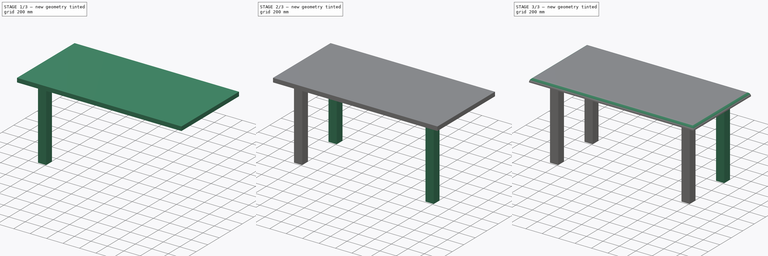
[diagram: build sequence overview — one tinted view per stage of 3, left to right]
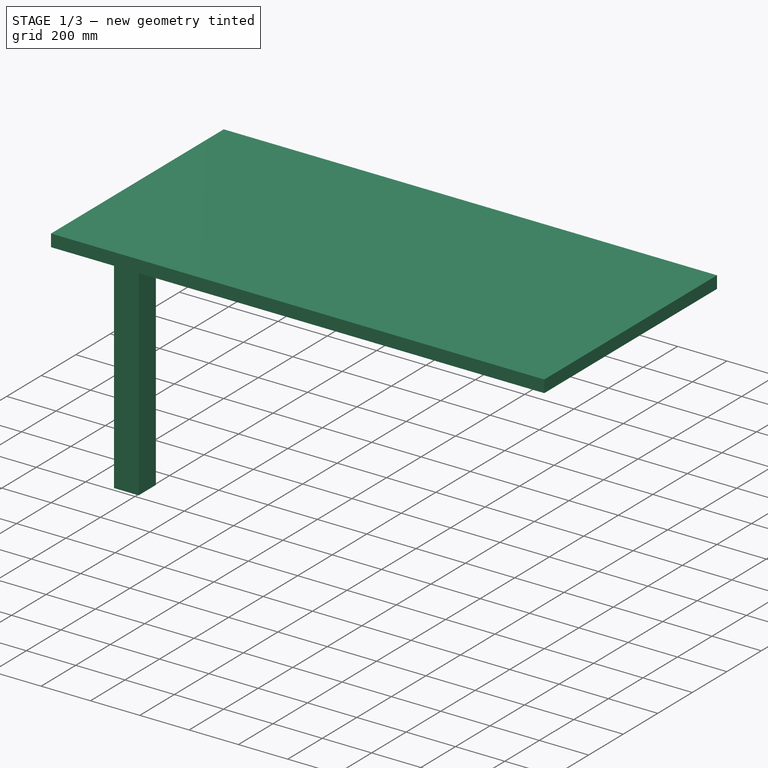
[diagram: stage 1 of 3 — iso view after this stage's code; geometry added in this stage tinted green]
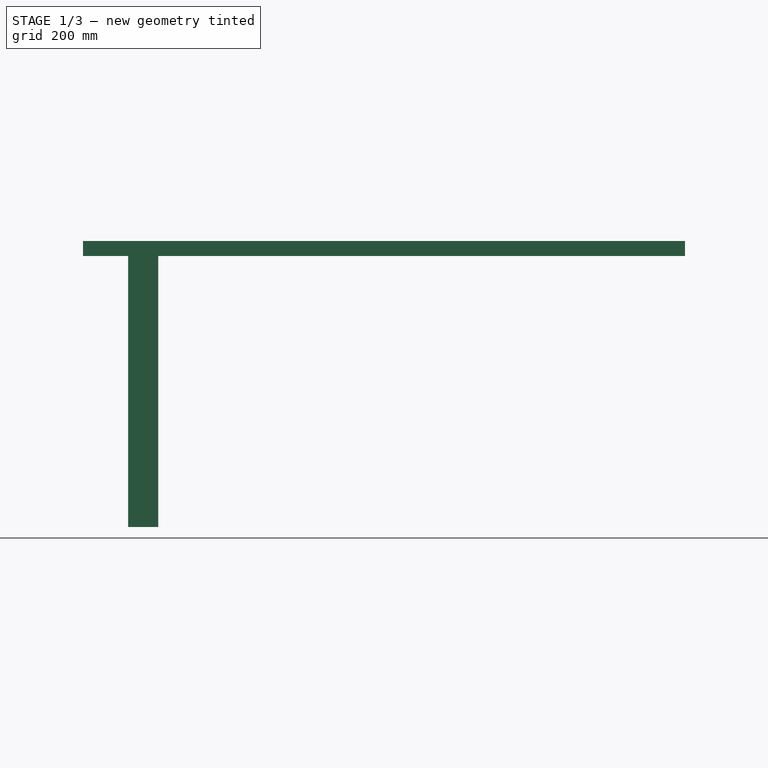
[diagram: stage 1 of 3 — front view after this stage's code; geometry added in this stage tinted green]
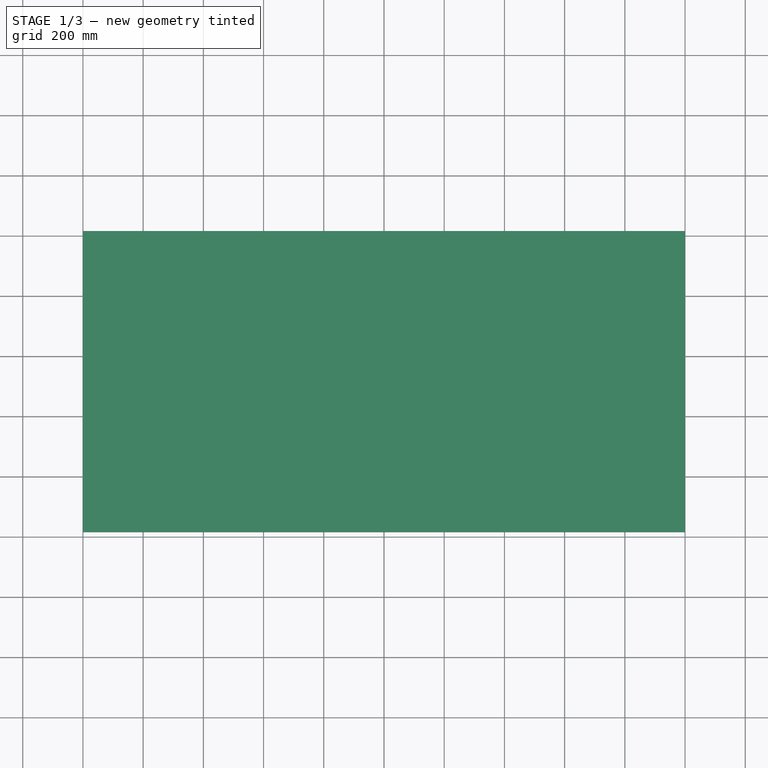
[diagram: stage 1 of 3 — top view after this stage's code; geometry added in this stage tinted green]
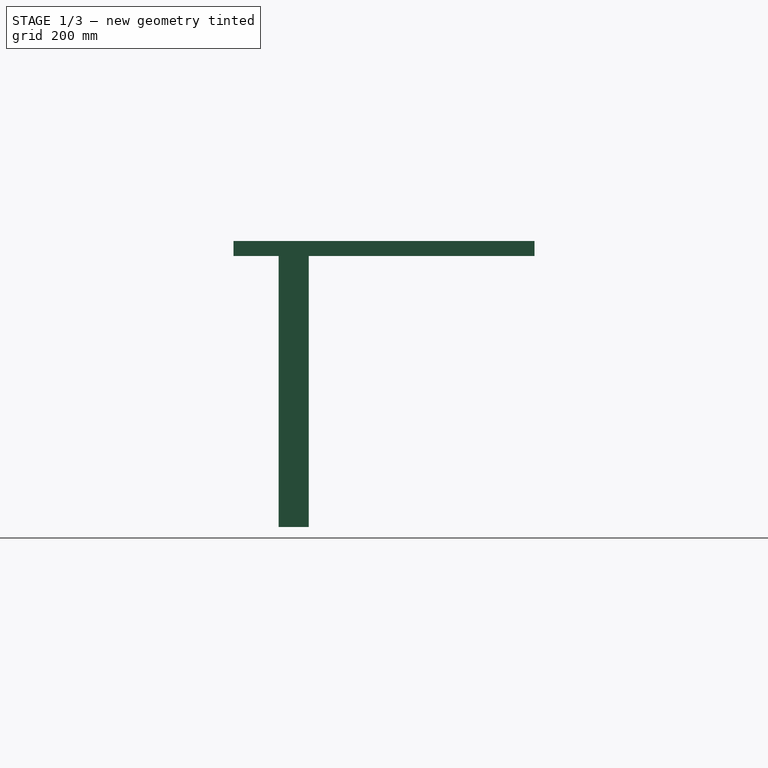
[diagram: stage 1 of 3 — right view after this stage's code; geometry added in this stage tinted green]
FCSTD DOCUMENT  (FreeCAD 0.18R16131 (Git))
Label: GenericTable_1x2m
License: All rights reserved
LicenseURL: http://en.wikipedia.org/wiki/All_rights_reserved
objects: Sketcher::SketchObject×5, PartDesign::Pad×5, PartDesign::Fillet×1, PartDesign::Body×1
note: 17 computed .brp shape members not serialized (recipe doc carries the construction recipe); baked Part::Feature solids carry a one-line shape summary decoded from their .brp

FEATURE [Sketcher::SketchObject] Sketch
  MapMode = 5
  Support = -> [XY_Plane]
  sketch-geometry (4):
    g0: LineSegment StartX=0 StartY=0 StartZ=0 EndX=2000 EndY=0 EndZ=0
    g1: LineSegment StartX=2000 StartY=0 StartZ=0 EndX=2000 EndY=1000 EndZ=0
    g2: LineSegment StartX=2000 StartY=1000 StartZ=0 EndX=0 EndY=1000 EndZ=0
    g3: LineSegment StartX=0 StartY=1000 StartZ=0 EndX=0 EndY=0 EndZ=0
  constraints (11):
    c: Coincident(g0,g1)
    c: Coincident(g1,g2)
    c: Coincident(g2,g3)
    c: Coincident(g3,g0)
    c: Horizontal(g0)
    c: Horizontal(g2)
    c: Vertical(g1)
    c: Vertical(g3)
    c: Coincident(g0,g-1)
    c: DistanceY(g1,g1) = 1000
    c: DistanceX(g0,g0) = 2000
FEATURE [PartDesign::Pad] Pad
  Length = 50
  Length2 = 100
  Profile = -> Sketch
  Type = 0
FEATURE [Sketcher::SketchObject] Sketch001
  MapMode = 5
  Placement = pos=(0,0,0) rot=(1,0,0;3.14159rad)
  Support = -> [Pad]
  sketch-geometry (4):
    g0: LineSegment StartX=150 StartY=-150 StartZ=0 EndX=250 EndY=-150 EndZ=0
    g1: LineSegment StartX=250 StartY=-150 StartZ=0 EndX=250 EndY=-250 EndZ=0
    g2: LineSegment StartX=250 StartY=-250 StartZ=0 EndX=150 EndY=-250 EndZ=0
    g3: LineSegment StartX=150 StartY=-250 StartZ=0 EndX=150 EndY=-150 EndZ=0
  constraints (12):
    c: Coincident(g0,g1)
    c: Coincident(g1,g2)
    c: Coincident(g2,g3)
    c: Coincident(g3,g0)
    c: Horizontal(g0)
    c: Horizontal(g2)
    c: Vertical(g1)
    c: Vertical(g3)
    c: DistanceY(g3,g3) = 100
    c: DistanceX(g0,g0) = 100
    c: DistanceX(g0) = 150
    c: DistanceY(g0) = -150
FEATURE [PartDesign::Pad] Pad001
  BaseFeature = -> Pad
  Length = 900
  Length2 = 100
  Profile = -> Sketch001
  Type = 0
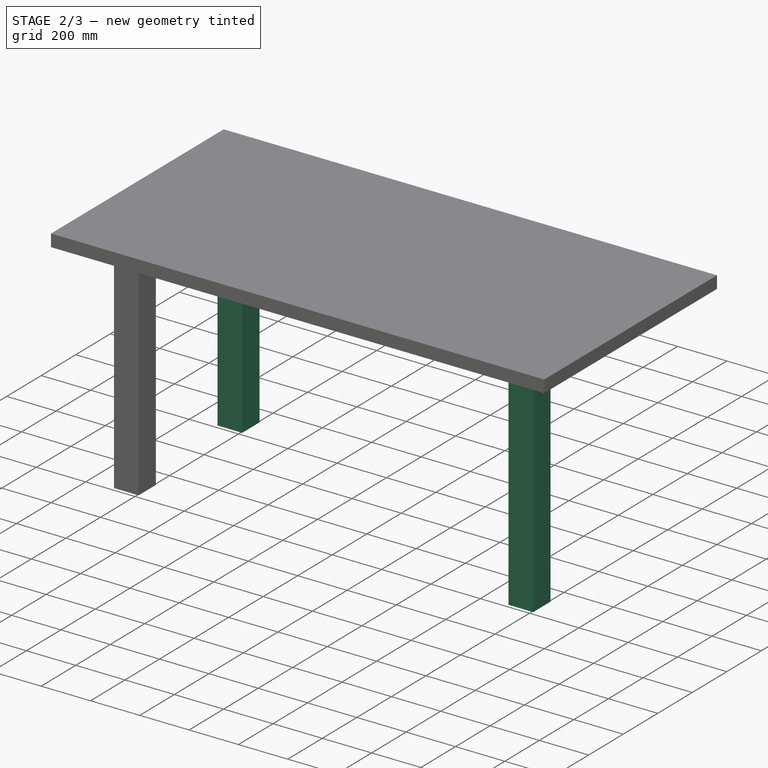
[diagram: stage 2 of 3 — iso view after this stage's code; geometry added in this stage tinted green]
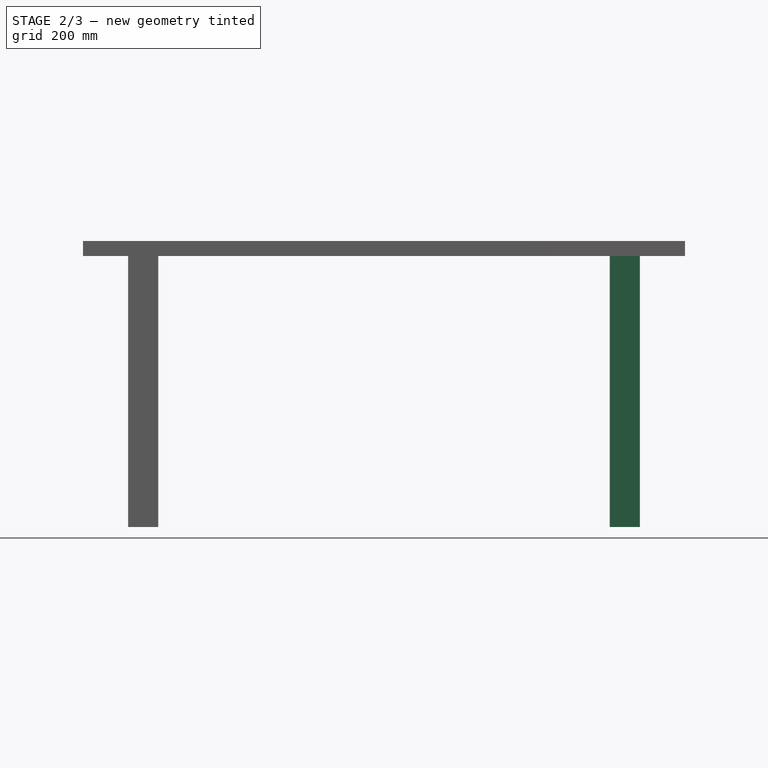
[diagram: stage 2 of 3 — front view after this stage's code; geometry added in this stage tinted green]
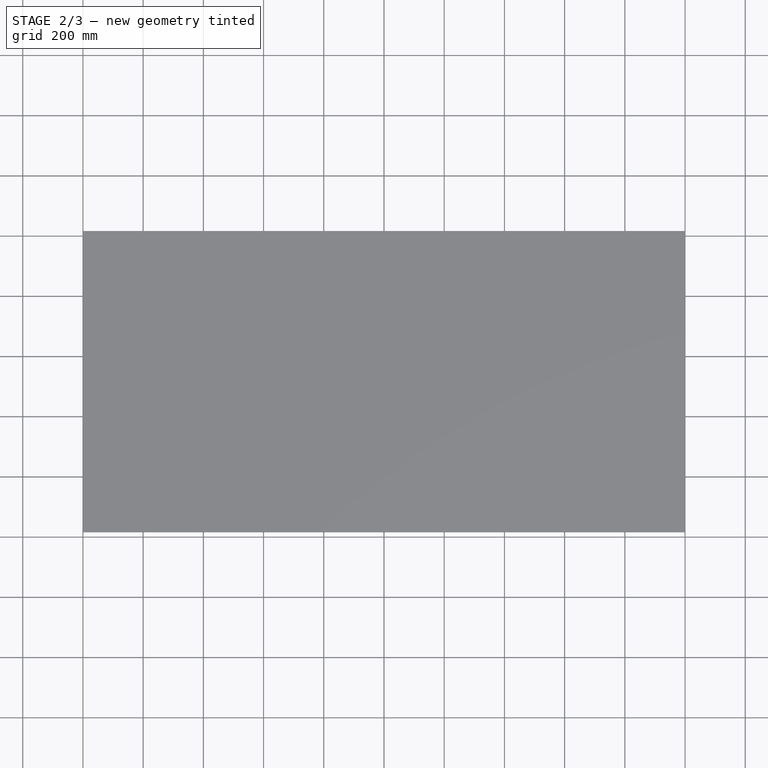
[diagram: stage 2 of 3 — top view after this stage's code; geometry added in this stage tinted green]
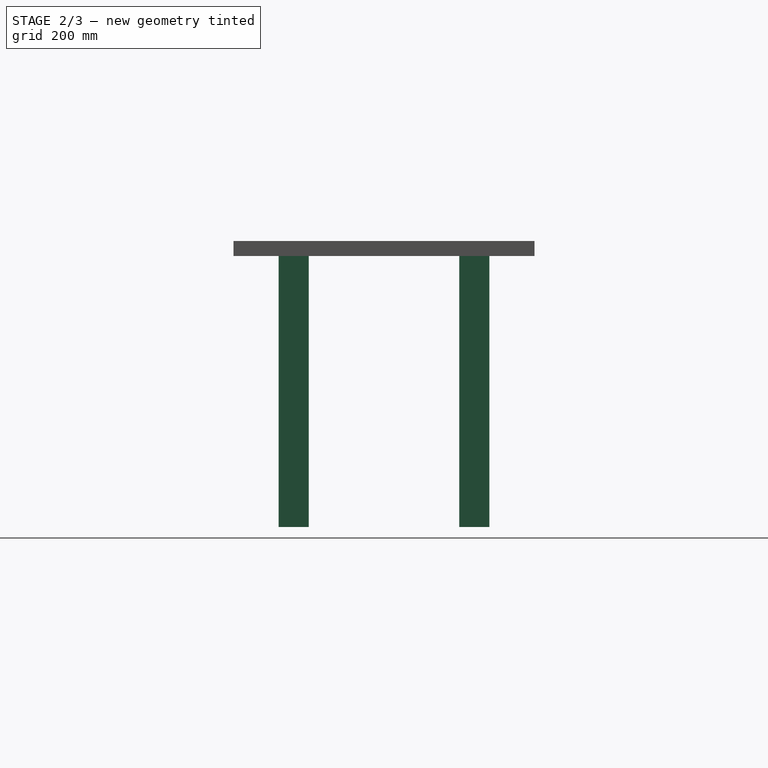
[diagram: stage 2 of 3 — right view after this stage's code; geometry added in this stage tinted green]
FEATURE [Sketcher::SketchObject] Sketch002
  MapMode = 5
  Placement = pos=(0,0,0) rot=(1,0,0;3.14159rad)
  Support = -> [Pad001]
  sketch-geometry (4):
    g0: LineSegment StartX=1750 StartY=-150 StartZ=0 EndX=1850 EndY=-150 EndZ=0
    g1: LineSegment StartX=1850 StartY=-150 StartZ=0 EndX=1850 EndY=-250 EndZ=0
    g2: LineSegment StartX=1850 StartY=-250 StartZ=0 EndX=1750 EndY=-250 EndZ=0
    g3: LineSegment StartX=1750 StartY=-250 StartZ=0 EndX=1750 EndY=-150 EndZ=0
  constraints (12):
    c: Coincident(g0,g1)
    c: Coincident(g1,g2)
    c: Coincident(g2,g3)
    c: Coincident(g3,g0)
    c: Horizontal(g0)
    c: Horizontal(g2)
    c: Vertical(g1)
    c: Vertical(g3)
    c: DistanceX(g0,g0) = 100
    c: DistanceY(g1,g1) = 100
    c: DistanceX(g0) = 1850
    c: DistanceY(g0) = -150
FEATURE [PartDesign::Pad] Pad002
  BaseFeature = -> Pad001
  Length = 900
  Length2 = 100
  Profile = -> Sketch002
  Type = 0
FEATURE [Sketcher::SketchObject] Sketch003
  MapMode = 5
  Placement = pos=(0,0,0) rot=(1,0,0;3.14159rad)
  Support = -> [Pad002]
  sketch-geometry (4):
    g0: LineSegment StartX=150 StartY=-750 StartZ=0 EndX=250 EndY=-750 EndZ=0
    g1: LineSegment StartX=250 StartY=-750 StartZ=0 EndX=250 EndY=-850 EndZ=0
    g2: LineSegment StartX=250 StartY=-850 StartZ=0 EndX=150 EndY=-850 EndZ=0
    g3: LineSegment StartX=150 StartY=-850 StartZ=0 EndX=150 EndY=-750 EndZ=0
  constraints (12):
    c: Coincident(g0,g1)
    c: Coincident(g1,g2)
    c: Coincident(g2,g3)
    c: Coincident(g3,g0)
    c: Horizontal(g0)
    c: Horizontal(g2)
    c: Vertical(g1)
    c: Vertical(g3)
    c: DistanceX(g0,g0) = 100
    c: DistanceY(g3,g3) = 100
    c: DistanceX(g2) = 150
    c: DistanceY(g2) = -850
FEATURE [PartDesign::Pad] Pad003
  BaseFeature = -> Pad002
  Length = 900
  Length2 = 100
  Profile = -> Sketch003
  Type = 0
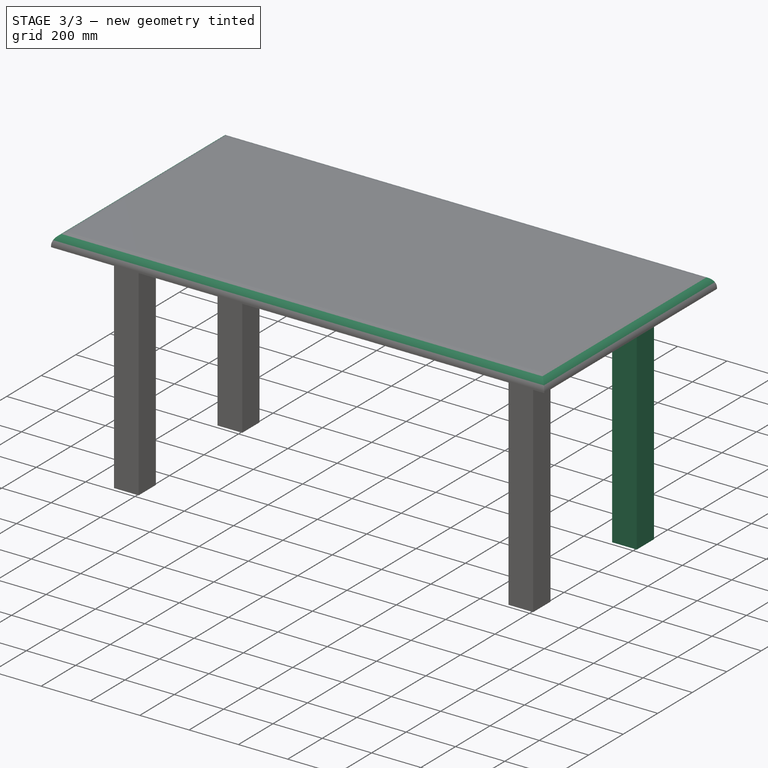
[diagram: stage 3 of 3 — iso view after this stage's code; geometry added in this stage tinted green]
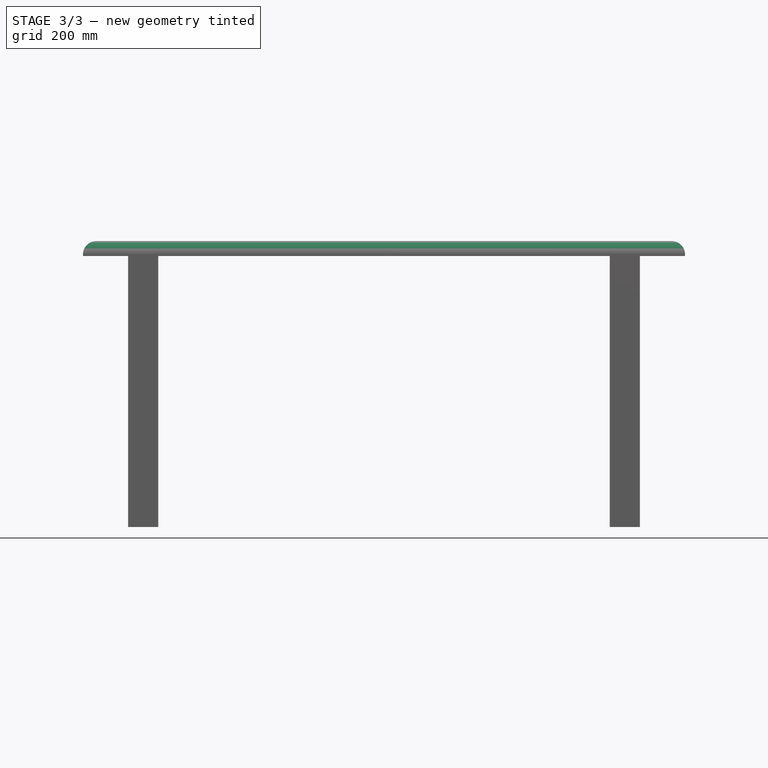
[diagram: stage 3 of 3 — front view after this stage's code; geometry added in this stage tinted green]
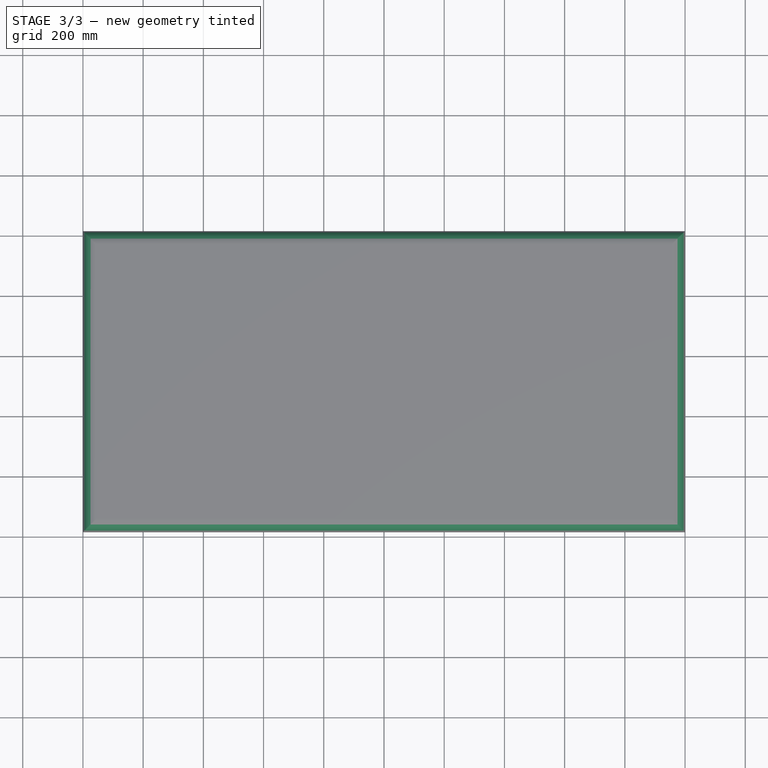
[diagram: stage 3 of 3 — top view after this stage's code; geometry added in this stage tinted green]
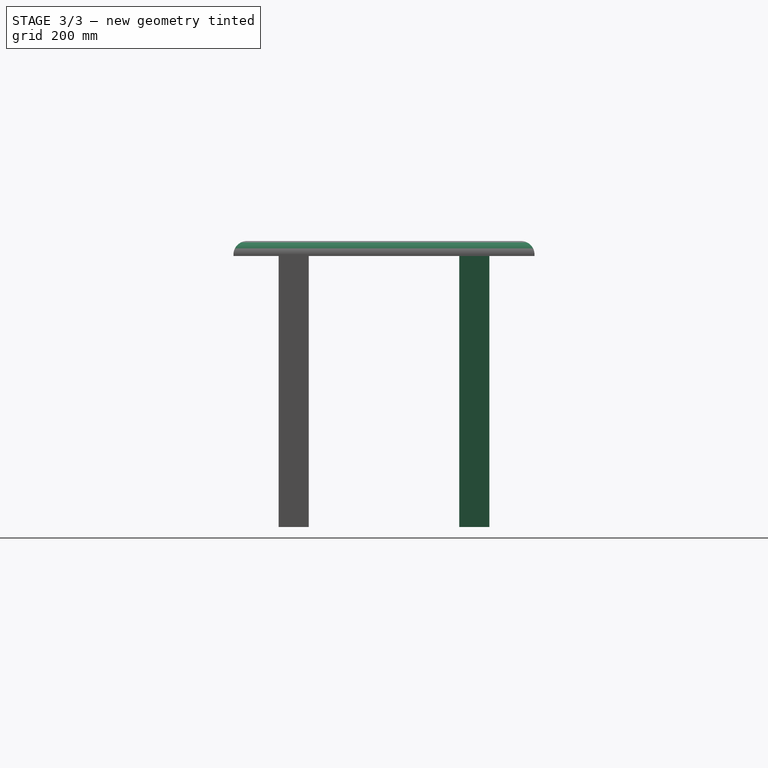
[diagram: stage 3 of 3 — right view after this stage's code; geometry added in this stage tinted green]
FEATURE [Sketcher::SketchObject] Sketch004
  MapMode = 5
  Placement = pos=(0,0,0) rot=(1,0,0;3.14159rad)
  Support = -> [Pad003]
  sketch-geometry (4):
    g0: LineSegment StartX=1750 StartY=-750 StartZ=0 EndX=1850 EndY=-750 EndZ=0
    g1: LineSegment StartX=1850 StartY=-750 StartZ=0 EndX=1850 EndY=-850 EndZ=0
    g2: LineSegment StartX=1850 StartY=-850 StartZ=0 EndX=1750 EndY=-850 EndZ=0
    g3: LineSegment StartX=1750 StartY=-850 StartZ=0 EndX=1750 EndY=-750 EndZ=0
  constraints (12):
    c: Coincident(g0,g1)
    c: Coincident(g1,g2)
    c: Coincident(g2,g3)
    c: Coincident(g3,g0)
    c: Horizontal(g0)
    c: Horizontal(g2)
    c: Vertical(g1)
    c: Vertical(g3)
    c: DistanceX(g0,g0) = 100
    c: DistanceY(g1,g1) = 100
    c: DistanceX(g1) = 1850
    c: DistanceY(g1) = -850
FEATURE [PartDesign::Pad] Pad004
  BaseFeature = -> Pad003
  Length = 900
  Length2 = 100
  Profile = -> Sketch004
  Type = 0
FEATURE [PartDesign::Fillet] Fillet
  Base = -> Pad004 [Face5]
  BaseFeature = -> Pad004
  Radius = 45
FEATURE [PartDesign::Body] Body  label="GenericTable_1x2m"
  Group = -> [Sketch,Pad,Sketch001,Pad001,Sketch002,Pad002,Sketch003,Pad003,Sketch004,Pad004,Fillet]
  Origin = -> Origin
  Tip = -> Fillet
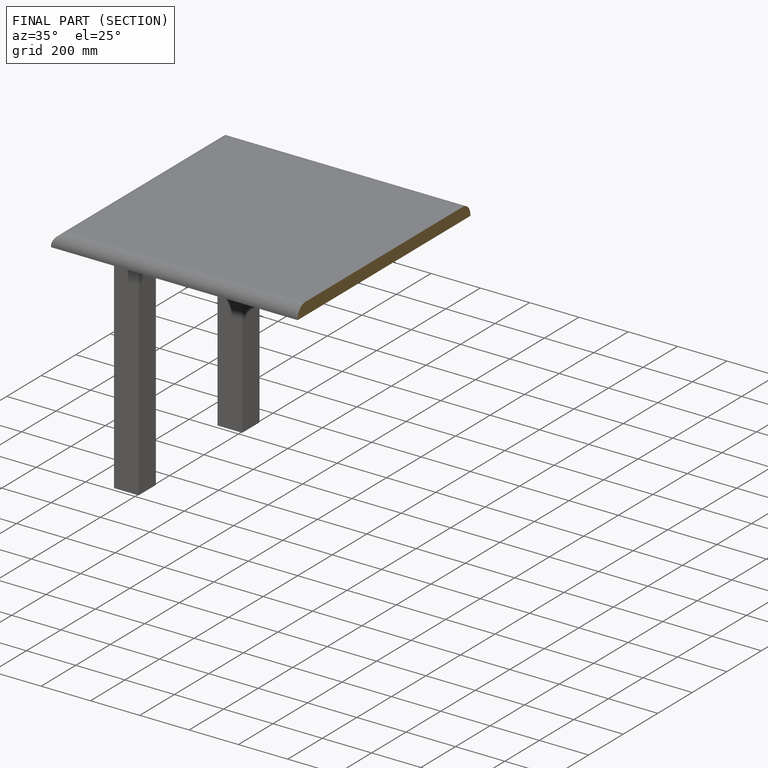
[diagram: finished part — half-section view (interior)]
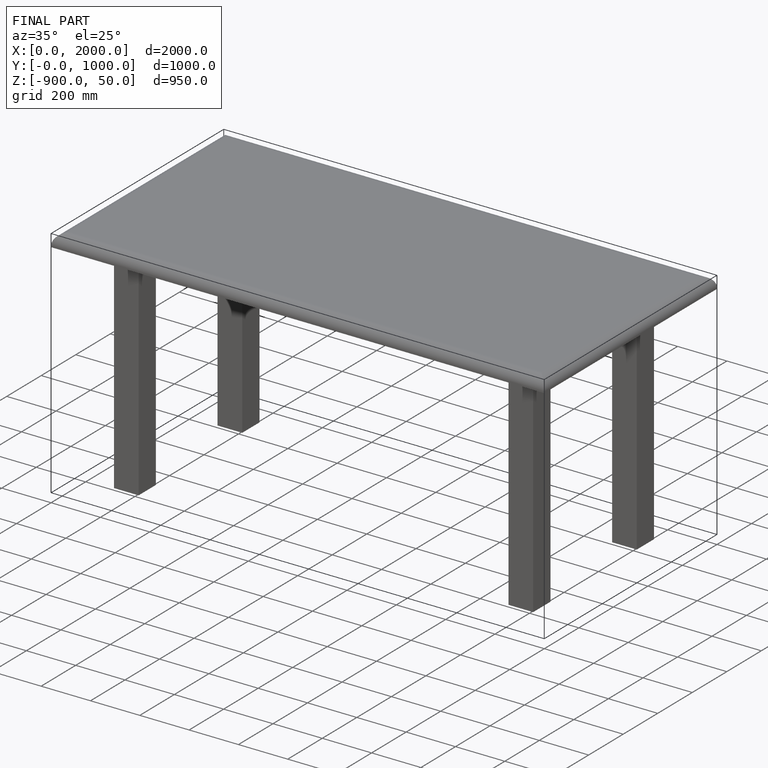
[diagram: finished part — iso view with bounding-box wireframe]
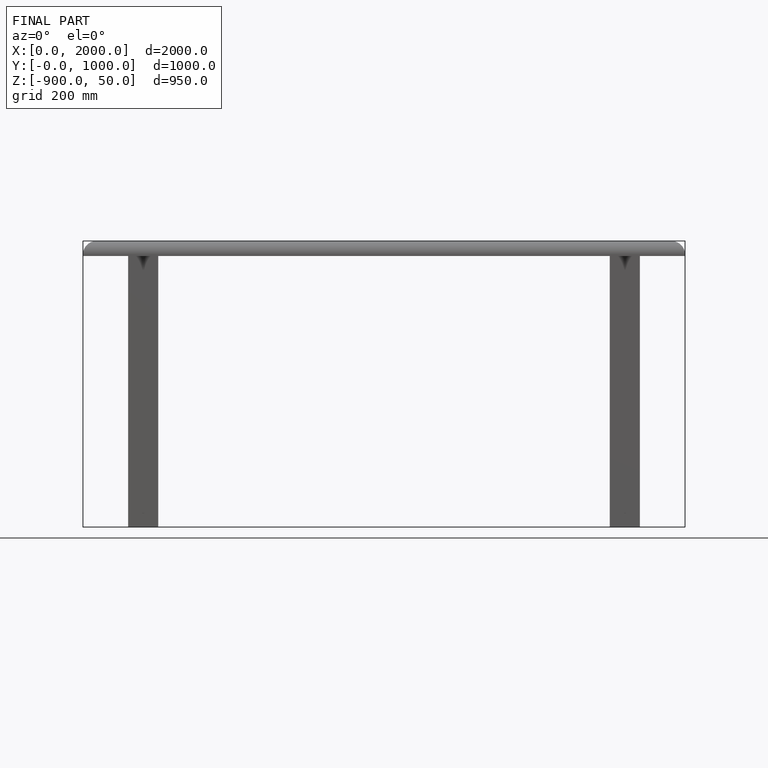
[diagram: finished part — front view with bounding-box wireframe]
